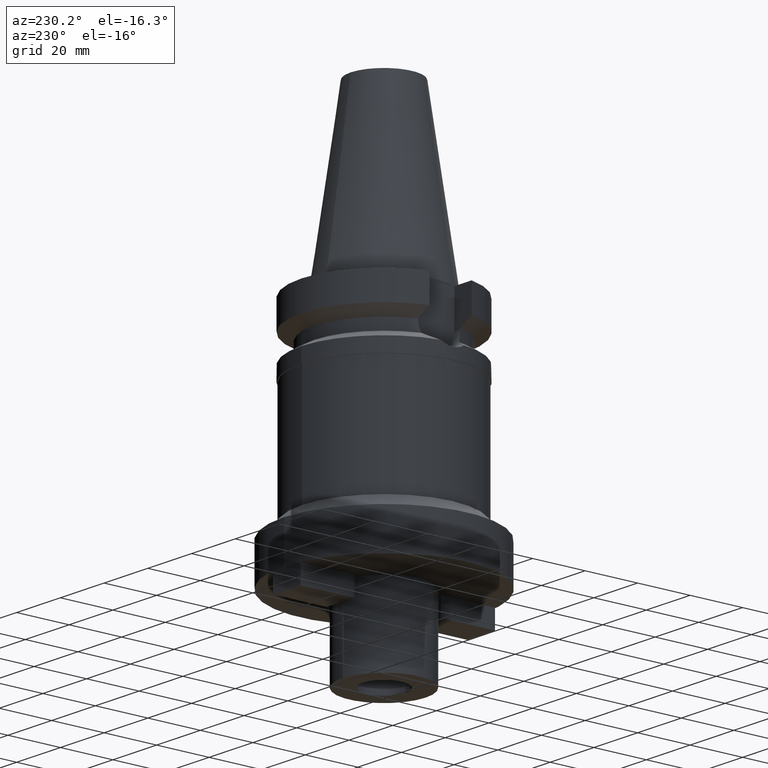
[diagram: clean part render]
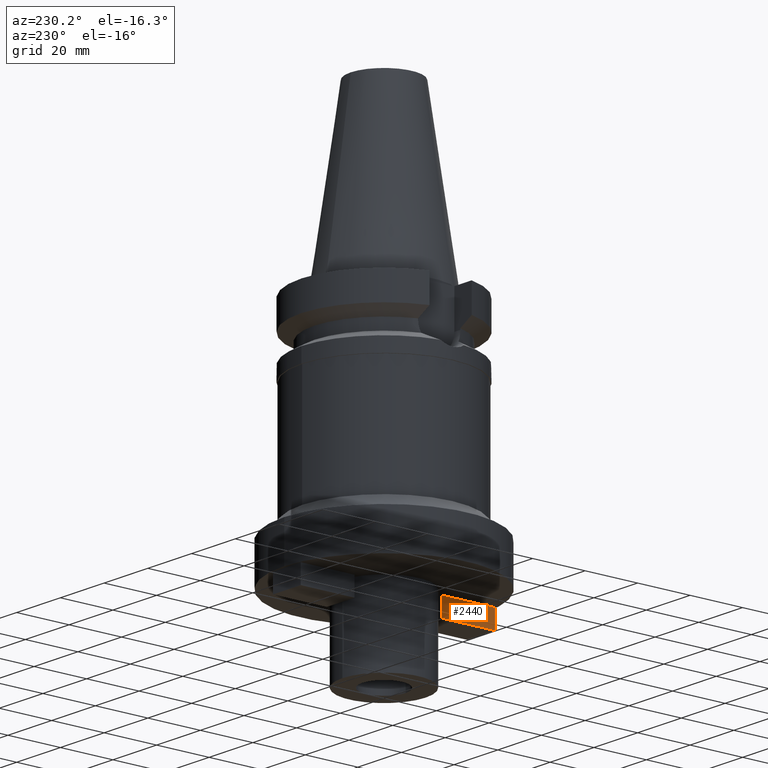
[diagram: same view with one face highlighted and labeled with its STEP entity id]
A machine part, auxiliary view. The second image highlights one B-rep face of the part: STEP entity #2440.
In plain terms, the highlighted planar face has unit normal (-1, 0, 0).
Its self-contained STEP definition (entity closure, byte-faithful):
#1196=DIRECTION('',(0.E0,-1.E0,0.E0));
#1197=VECTOR('',#1196,2.05E1);
#1198=CARTESIAN_POINT('',(-6.35E0,-1.65E1,-9.E1));
#1199=LINE('',#1198,#1197);
#1203=DIRECTION('',(0.E0,0.E0,-1.E0));
#1204=VECTOR('',#1203,7.E0);
#1205=CARTESIAN_POINT('',(-6.35E0,-3.7E1,-9.E1));
#1206=LINE('',#1205,#1204);
#1210=DIRECTION('',(0.E0,1.E0,0.E0));
#1211=VECTOR('',#1210,2.05E1);
#1212=CARTESIAN_POINT('',(-6.35E0,-3.7E1,-9.7E1));
#1213=LINE('',#1212,#1211);
#1217=DIRECTION('',(0.E0,0.E0,1.E0));
#1218=VECTOR('',#1217,7.E0);
#1219=CARTESIAN_POINT('',(-6.35E0,-1.65E1,-9.7E1));
#1220=LINE('',#1219,#1218);
#1328=CARTESIAN_POINT('',(-6.35E0,-3.7E1,-9.E1));
#1329=VERTEX_POINT('',#1328);
#1330=CARTESIAN_POINT('',(-6.35E0,-1.65E1,-9.E1));
#1331=VERTEX_POINT('',#1330);
#1449=CARTESIAN_POINT('',(-6.35E0,-1.65E1,-9.7E1));
#1450=VERTEX_POINT('',#1449);
#1451=CARTESIAN_POINT('',(-6.35E0,-3.7E1,-9.7E1));
#1452=VERTEX_POINT('',#1451);
#2427=CARTESIAN_POINT('',(-6.35E0,2.409134503414E-14,0.E0));
#2428=DIRECTION('',(-1.E0,0.E0,0.E0));
#2429=DIRECTION('',(0.E0,0.E0,1.E0));
#2430=AXIS2_PLACEMENT_3D('',#2427,#2428,#2429);
#2431=PLANE('',#2430);
#2432=ORIENTED_EDGE('',*,*,#2021,.T.);
#2434=ORIENTED_EDGE('',*,*,#2433,.T.);
#2436=ORIENTED_EDGE('',*,*,#2435,.T.);
#2437=ORIENTED_EDGE('',*,*,#2419,.T.);
#2438=EDGE_LOOP('',(#2432,#2434,#2436,#2437));
#2439=FACE_OUTER_BOUND('',#2438,.F.);
#2021=EDGE_CURVE('',#1331,#1329,#1199,.T.);
#2419=EDGE_CURVE('',#1450,#1331,#1220,.T.);
#2433=EDGE_CURVE('',#1329,#1452,#1206,.T.);
#2435=EDGE_CURVE('',#1452,#1450,#1213,.T.);
#2440=ADVANCED_FACE('',(#2439),#2431,.T.);